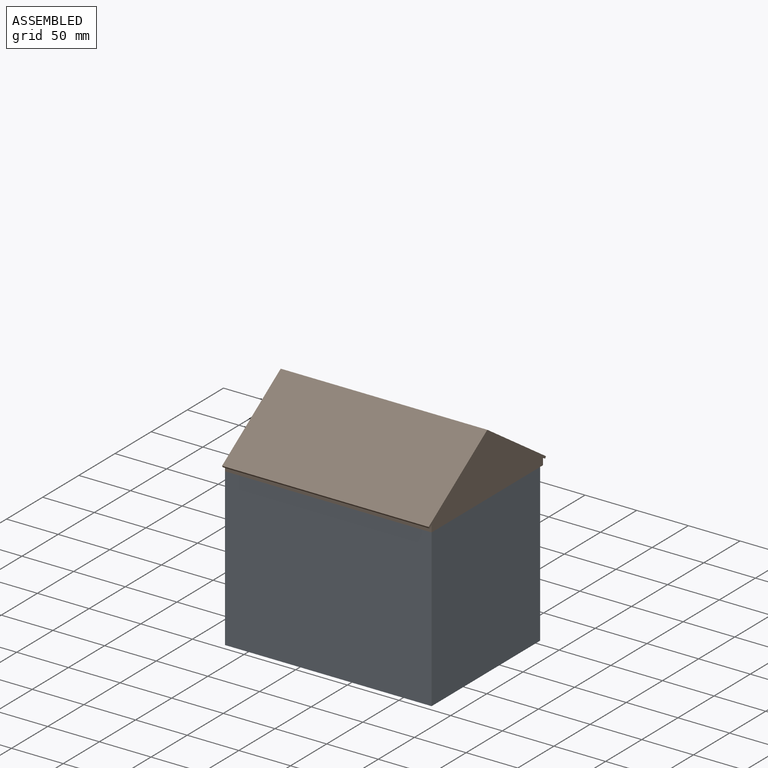
[diagram: assembled view]
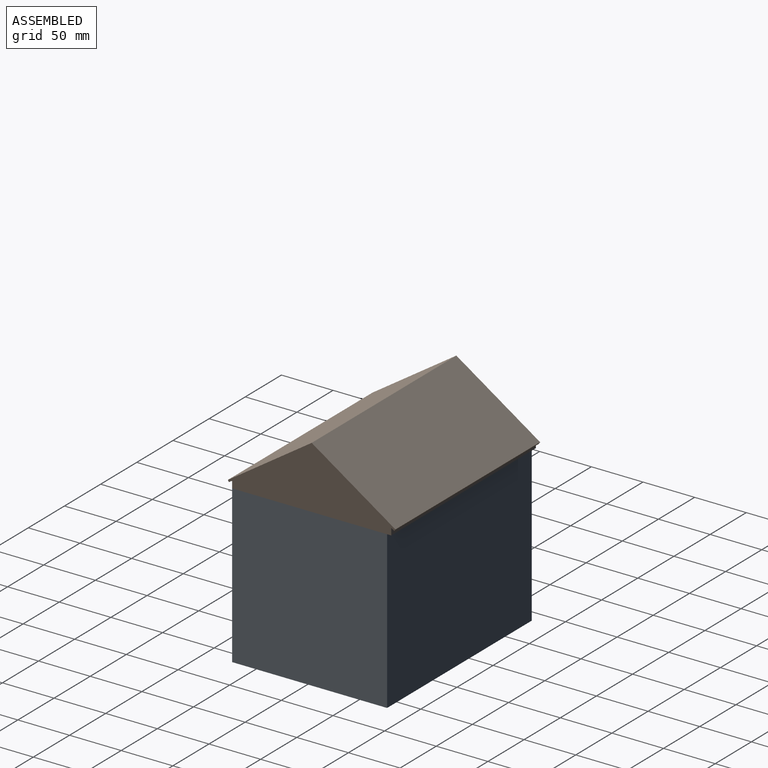
[diagram: assembled view, second angle]
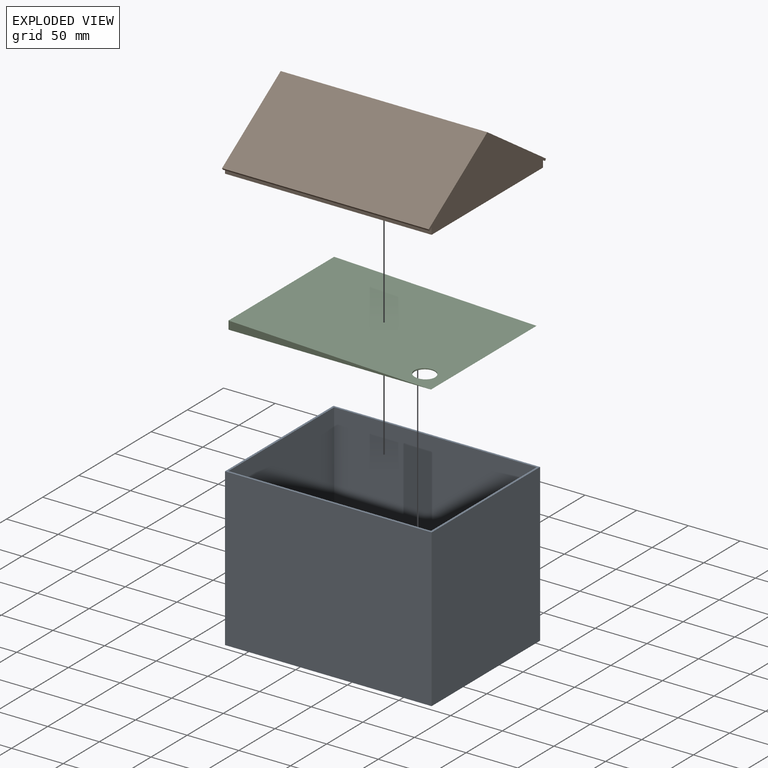
[diagram: exploded view]
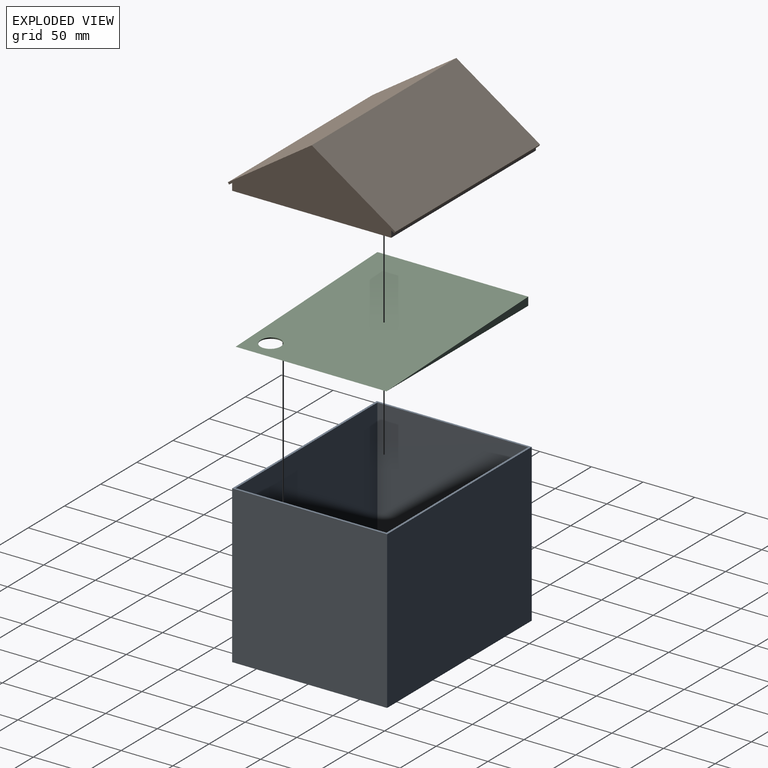
[diagram: exploded view, second angle]
ASSEMBLY  parts=3 mates=2
PART A: 12 faces, bbox 200x150x152 mm
  f0: plane 200x152mm, normal (0,-1,0), area 30400mm2, adj f1,f3,f4,f9
  f1: plane 152x150mm, normal (1,0,0), area 22800mm2, adj f0,f2,f4,f9
  f2: plane 200x152mm, normal (0,1,0), area 30400mm2, adj f1,f3,f4,f9
  f3: plane 152x150mm, normal (-1,0,0), area 22800mm2, adj f0,f2,f4,f9
  f4: plane 200x150mm, normal (0,0,-1), area 29685.8mm2, adj f0,f1,f2,f3,f11
  f5: plane 196x150mm, normal (0,-1,0), area 29400mm2, adj f6,f8,f9,f10
  f6: plane 150x146mm, normal (-1,0,0), area 21900mm2, adj f5,f7,f9,f10
  f7: plane 196x150mm, normal (0,1,0), area 29400mm2, adj f6,f8,f9,f10
  f8: plane 150x146mm, normal (1,0,0), area 21900mm2, adj f5,f7,f9,f10
  f9: plane 200x150mm, normal (0,0,1), area 1384mm2, adj f0,f1,f2,f3,f5,f6,f7,f8
  f10: plane 196x146mm, normal (0,0,1), area 28301.8mm2, adj f5,f6,f7,f8,f11
  f11: cylinder r=10mm len=20mm, axis (0,0,-1), area 125.7mm2, adj f4,f10
PART B: 17 faces, bbox 200x162.2x60.4 mm
  f0: plane 196x75mm, normal (0,0.55,-0.83), area 17667.2mm2, adj f1,f3,f15,f16
  f1: plane 196x75mm, normal (0,-0.55,-0.83), area 17667.2mm2, adj f0,f2,f15,f16
  f2: plane 196x8mm, normal (0,-1,0), area 1568mm2, adj f1,f4,f15,f16
  f3: plane 196x8mm, normal (0,1,0), area 1568mm2, adj f0,f4,f15,f16
  f4: plane 200x154mm, normal (0,0,-1), area 1400mm2, adj f2,f3,f5,f12,f13,f14,f15,f16
  f5: plane 200x6.67mm, normal (0,1,0), area 1333.3mm2, adj f4,f6,f13,f14
  f6: plane 200x2.99mm, normal (0,-0.55,-0.83), area 719.3mm2, adj f5,f7,f13,f14
  f7: plane 200x1.66mm, normal (0,0.83,-0.55), area 400mm2, adj f6,f8,f13,f14
  f8: plane 200x81.1mm, normal (0,0.55,0.83), area 19494.4mm2, adj f7,f9,f13,f14
  f9: plane 200x81.1mm, normal (0,-0.55,0.83), area 19494.4mm2, adj f8,f10,f13,f14
  f10: plane 200x1.66mm, normal (0,-0.83,-0.55), area 400mm2, adj f9,f11,f13,f14
  f11: plane 200x2.99mm, normal (0,0.55,-0.83), area 719.3mm2, adj f10,f12,f13,f14
  f12: plane 200x6.67mm, normal (0,-1,0), area 1333.3mm2, adj f4,f11,f13,f14
  f13: plane 162.2x60.4mm, normal (1,0,0), area 5366.6mm2, adj f4,f5,f6,f7,f8,f9,f10,f11
  f14: plane 162.2x60.4mm, normal (-1,0,0), area 5366.6mm2, adj f4,f5,f6,f7,f8,f9,f10,f11
  f15: plane 150x58mm, normal (-1,0,0), area 4950mm2, adj f0,f1,f2,f3,f4
  f16: plane 150x58mm, normal (1,0,0), area 4950mm2, adj f0,f1,f2,f3,f4
PART C: 6 faces, bbox 196.2x146.2x8.2 mm
  f0: plane 196x8mm, normal (0,-1,0), area 784mm2, adj f2,f3,f4
  f1: plane 196x8mm, normal (0,1,0), area 784mm2, adj f2,f3,f4
  f2: plane 146x8mm, normal (-1,0,0), area 1168mm2, adj f0,f1,f3,f4
  f3: plane 196x146mm, normal (0,0,-1), area 28301.8mm2, adj f0,f1,f2,f4,f5
  f4: plane 196.17x146.17mm, normal (0.04,0,1), area 28325.4mm2, adj f0,f1,f2,f3,f5
  f5: cylinder r=10mm len=20mm, axis (0,0,-1), area 51.3mm2, adj f3,f4
PLACE A t=(-90,34.42,-44.77)mm
PLACE B t=(-643,36.42,115.23)mm
PLACE C t=(-413.8,-20.56,-42.77)mm
MATE planar B.f4 <-> A.f9  axis (0,0,1) through (8,-38.58,107.23)mm
MATE planar C.f3 <-> A.f10  axis (0,0,-1) through (-188,107.42,-42.77)mm
